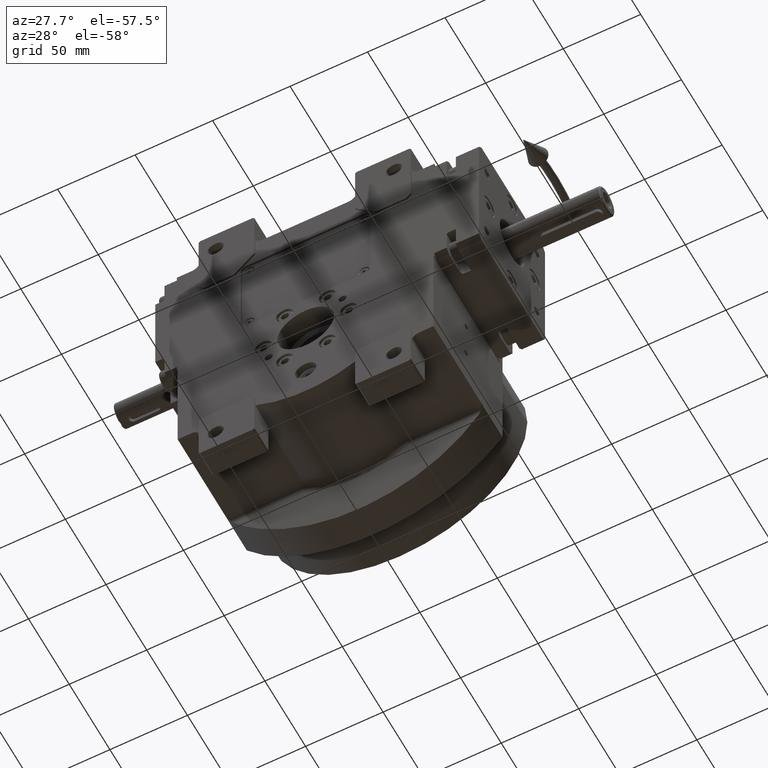
[diagram: clean part render]
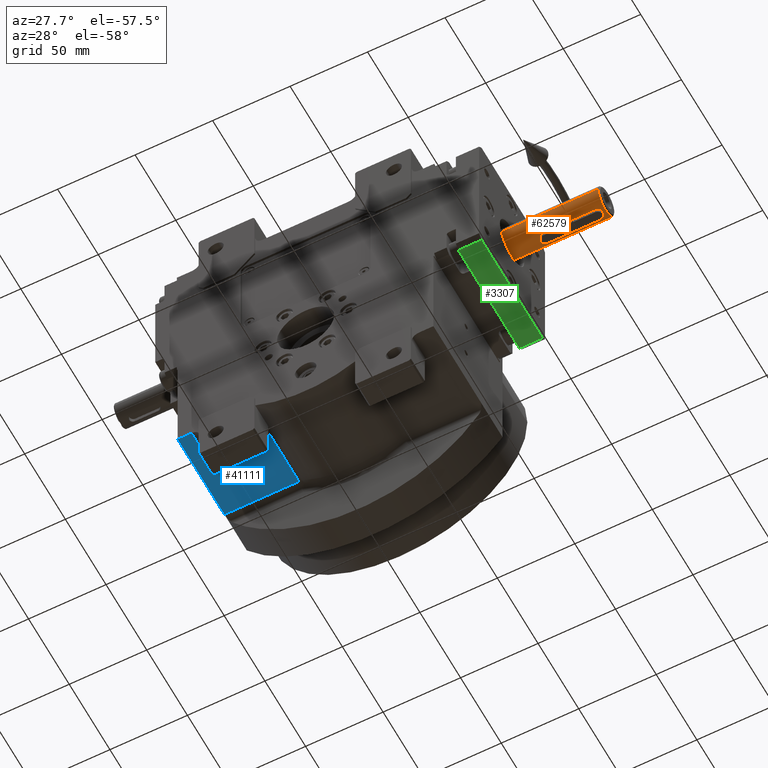
[diagram: same view with three faces highlighted in distinct colors, each labeled with its STEP entity id]
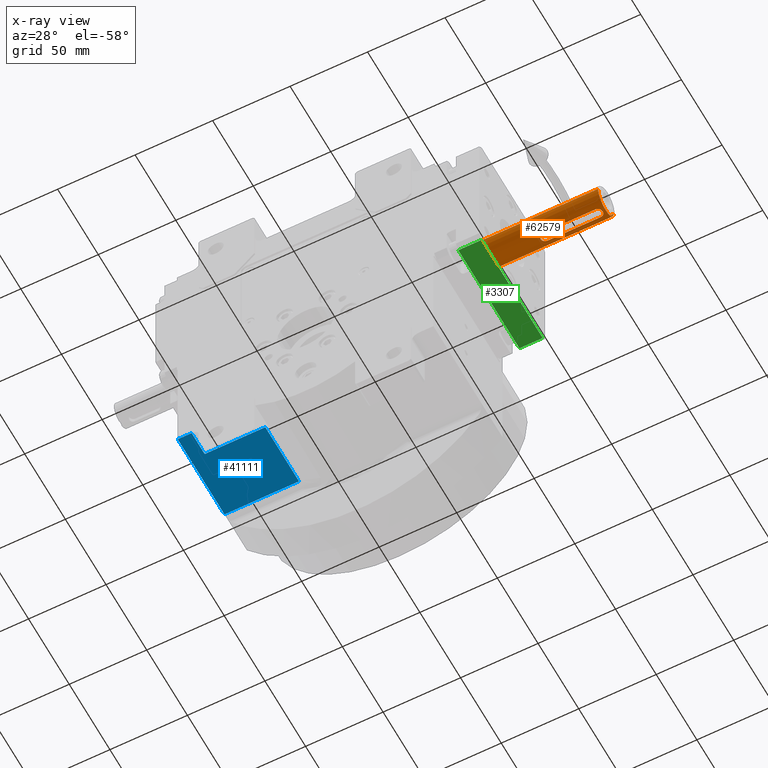
[diagram: x-ray of the same camera — body ghosted, the three highlighted faces saturated]
A machine part, auxiliary view with three faces highlighted in distinct colors.
The next image is the same camera in x-ray (body ghosted, the three faces saturated) — at least one of them is partly hidden behind the body in this view.
Their STEP definitions:

[orange] entity #62579 — the highlighted cylindrical surface (edge-blend (fillet) strip) has radius 9.5 mm, axis along (-1, -0, -0).
#222 = CARTESIAN_POINT ( 'NONE',  ( -2.076755534685462479, -98.33481572862692133, 9.270280632153106382 ) ) ;
#645 = CARTESIAN_POINT ( 'NONE',  ( -2.920503359152426537, -135.1930758617577624, 9.041319707718995957 ) ) ;
#1728 = CARTESIAN_POINT ( 'NONE',  ( -0.7705588840869115330, -137.4287509887514602, 9.476588555391328939 ) ) ;
#2597 = EDGE_LOOP ( 'NONE', ( #27983, #71092, #17566, #63409 ) ) ;
#2856 = CARTESIAN_POINT ( 'NONE',  ( 2.920503302003506274, -99.80692389705797041, 9.041319739571193281 ) ) ;
#2996 = CARTESIAN_POINT ( 'NONE',  ( -1.243527020587133824, -139.4998466943041819, 9.499846689728636662 ) ) ;
#3217 = CARTESIAN_POINT ( 'NONE',  ( 1.181140547334593727, -97.74227524908900477, 9.426234887611801838 ) ) ;
#3404 = CIRCLE ( 'NONE', #4568, 9.500000000000000000 ) ;
#3576 = CARTESIAN_POINT ( 'NONE',  ( 2.999999999999917843, -100.5000000000000000, 9.013878188659973034 ) ) ;
#3713 = CARTESIAN_POINT ( 'NONE',  ( 1.243527026386956669, -139.4998466943036703, 9.499846688969983077 ) ) ;
#3973 = VERTEX_POINT ( 'NONE', #33563 ) ;
#3982 = CARTESIAN_POINT ( 'NONE',  ( 2.999999999999900968, -134.5000000000000000, 9.013878188659973034 ) ) ;
#4314 = CARTESIAN_POINT ( 'NONE',  ( -0.6700262895659991891, -97.57411792000129935, 9.476593787887347631 ) ) ;
#4464 = CARTESIAN_POINT ( 'NONE',  ( 2.447916105662388375, -136.2452901866254251, 9.180967598890541481 ) ) ;
#4568 = AXIS2_PLACEMENT_3D ( 'NONE', #67119, #66421, #38582 ) ;
#4656 = EDGE_CURVE ( 'NONE', #22418, #36122, #58390, .T. ) ;
#4823 = CARTESIAN_POINT ( 'NONE',  ( 1.281189302773732663, -137.2162322305360931, 9.414028769672855290 ) ) ;
#5377 = CARTESIAN_POINT ( 'NONE',  ( -1.432446439617622191, -97.85683523955150065, 9.392028264645826852 ) ) ;
#5523 = CARTESIAN_POINT ( 'NONE',  ( 2.309830933422241994, -136.4328102777803053, 9.217002154046662454 ) ) ;
#5840 = DIRECTION ( 'NONE',  ( 4.683861624749757595E-31, -1.000000000000000000, -9.367723249499515189E-31 ) ) ;
#7014 = CARTESIAN_POINT ( 'NONE',  ( 2.927413515468598497E-29, -65.50000000000000000, 0.000000000000000000 ) ) ;
#8153 = EDGE_CURVE ( 'NONE', #11710, #15350, #46596, .T. ) ;
#8324 = CARTESIAN_POINT ( 'NONE',  ( 2.143571747433680397, -98.40093099558531264, 9.255083301667887952 ) ) ;
#8458 = CARTESIAN_POINT ( 'NONE',  ( -8.300836726140465416, -139.4998466943060862, 4.784303107579976455 ) ) ;
#8533 = VERTEX_POINT ( 'NONE', #12422 ) ;
#8679 = CARTESIAN_POINT ( 'NONE',  ( 1.943281345365760027, -98.20064117612012922, 9.300959556781824844 ) ) ;
#9047 = CARTESIAN_POINT ( 'NONE',  ( 2.294623447025719187, -98.56646007609728599, 9.219224885940105807 ) ) ;
#9406 = CARTESIAN_POINT ( 'NONE',  ( 2.999999999999923173, -100.2965243989202548, 9.015959503623328430 ) ) ;
#9775 = CARTESIAN_POINT ( 'NONE',  ( 1.168895048913221046, -97.73708418927932939, 9.427766392780942084 ) ) ;
#9913 = CARTESIAN_POINT ( 'NONE',  ( 4.784303105047607474, -139.4998466943028745, 8.300836727603803311 ) ) ;
#10146 = CARTESIAN_POINT ( 'NONE',  ( -3.000000000000075939, -100.0929497639062760, 9.018041906921343553 ) ) ;
#10299 = CARTESIAN_POINT ( 'NONE',  ( 2.759557787002767881, -135.6768409796904393, 9.090128969929150315 ) ) ;
#10646 = CARTESIAN_POINT ( 'NONE',  ( 0.9847578407999324490, -137.3345789351964470, 9.448970329299379856 ) ) ;
#10672 = DIRECTION ( 'NONE',  ( 4.683861624749757595E-31, -1.000000000000000000, -9.367723249499515189E-31 ) ) ;
#11206 = CARTESIAN_POINT ( 'NONE',  ( -2.767317610896457225, -99.34156612770402717, 9.087756597495436850 ) ) ;
#11266 = CARTESIAN_POINT ( 'NONE',  ( -2.654035305622171936, -135.9122420898385144, 9.123169023331190175 ) ) ;
#11710 = VERTEX_POINT ( 'NONE', #41867 ) ;
#11942 = EDGE_CURVE ( 'NONE', #14072, #36122, #27546, .T. ) ;
#12115 = CARTESIAN_POINT ( 'NONE',  ( 9.499961664422494678, -139.4999616814910155, -1.406597893716110548E-07 ) ) ;
#12339 = CARTESIAN_POINT ( 'NONE',  ( -1.160774523444123130, -137.2663372748490360, 9.428775172829066520 ) ) ;
#12422 = CARTESIAN_POINT ( 'NONE',  ( 9.499999999999934275, -65.50000000000000000, 0.000000000000000000 ) ) ;
#13415 = CARTESIAN_POINT ( 'NONE',  ( -2.332787495134699185, -136.3871788677842574, 9.209767946875800249 ) ) ;
#14072 = VERTEX_POINT ( 'NONE', #25578 ) ;
#14174 = CARTESIAN_POINT ( 'NONE',  ( 2.979241934065827824, -100.0963992266660227, 9.023080055721541370 ) ) ;
#14531 = CARTESIAN_POINT ( 'NONE',  ( 2.786101665362830992, -99.38739665115124922, 9.082041199737556525 ) ) ;
#14561 = ORIENTED_EDGE ( 'NONE', *, *, #19279, .T. ) ;
#15008 = CARTESIAN_POINT ( 'NONE',  ( -9.500000000000065725, -139.4999808407454225, 1.387778780781445676E-14 ) ) ;
#15271 = CARTESIAN_POINT ( 'NONE',  ( 2.853717011937232595, -99.57337026380001532, 9.061558713247453767 ) ) ;
#15350 = VERTEX_POINT ( 'NONE', #55683 ) ;
#15635 = CARTESIAN_POINT ( 'NONE',  ( -2.699222266585262542, -99.19011195750299237, 9.108662359077632331 ) ) ;
#15782 = CARTESIAN_POINT ( 'NONE',  ( 2.737669282503632839, -135.7269820504866118, 9.096856653874146659 ) ) ;
#16006 = CARTESIAN_POINT ( 'NONE',  ( -2.768052972860145733, -99.34331589979032628, 9.087531877680280701 ) ) ;
#16152 = CARTESIAN_POINT ( 'NONE',  ( 0.9122892548982852734, -137.3583703725897180, 9.456103506591537311 ) ) ;
#16488 = CARTESIAN_POINT ( 'NONE',  ( 0.3797347091585063783, -137.4823960554267614, 9.494147124271441029 ) ) ;
#16750 = CARTESIAN_POINT ( 'NONE',  ( -2.853717067103960670, -135.4266295672364038, 9.061558691766251172 ) ) ;
#17476 = CARTESIAN_POINT ( 'NONE',  ( -2.786101688588199288, -135.6126032908526895, 9.082041194698554420 ) ) ;
#17566 = ORIENTED_EDGE ( 'NONE', *, *, #11942, .T. ) ;
#17799 = VECTOR ( 'NONE', #31604, 1000.000000000000000 ) ;
#18724 = CARTESIAN_POINT ( 'NONE',  ( -3.000000000000082601, -100.5000000000000000, 9.013878188659973034 ) ) ;
#18920 = CARTESIAN_POINT ( 'NONE',  ( -2.439240535440532209, -136.2502776682960643, 9.182737694954422381 ) ) ;
#19019 = B_SPLINE_CURVE_WITH_KNOTS ( 'NONE', 3,
 ( #27805, #50864, #45343, #645, #50167, #16750, #67739, #39157, #17476, #39874, #62231, #32960, #61502, #11266, #51238, #18920, #13415, #52315, #41296, #56735, #23716, #40590, #47148, #30335, #46063, #40227, #51936, #63680, #35841, #46791, #69172, #24804, #12339, #58170, #1728, #24084, #68446 ),
 .UNSPECIFIED., .F., .F.,
 ( 4, 2, 2, 1, 1, 1, 2, 2, 2, 2, 2, 2, 2, 2, 2, 2, 1, 1, 2, 2, 4 ),
 ( 0.000000000000000000, 0.06249999999997334077, 0.09374999999996000422, 0.1093749999999533151, 0.1171874999999499706, 0.1210937499999483191, 0.1230468749999474726, 0.1249999999999466260, 0.1874999999999215072, 0.2187499999999125977, 0.2343749999999110711, 0.2421874999999077127, 0.2499999999999043543, 0.3124999999999106826, 0.3437499999999161782, 0.3593749999999190092, 0.3671874999999204525, 0.3710937499999235611, 0.3730468749999251710, 0.3749999999999267253, 0.5000000000000000000 ),
 .UNSPECIFIED. ) ;
#19279 = EDGE_CURVE ( 'NONE', #3973, #48022, #49565, .T. ) ;
#19823 = CARTESIAN_POINT ( 'NONE',  ( -9.252591106540734245, -139.4998466943066830, 2.486564777840073237 ) ) ;
#20020 = EDGE_CURVE ( 'NONE', #3973, #11710, #25666, .T. ) ;
#20545 = CARTESIAN_POINT ( 'NONE',  ( 0.1873683784700692356, -137.4999999999999147, 9.499999992726094078 ) ) ;
#20782 = CARTESIAN_POINT ( 'NONE',  ( 2.211729640948800757, -98.47286149866403093, 9.239144202690315666 ) ) ;
#21153 = CARTESIAN_POINT ( 'NONE',  ( -1.943068559403307249, -98.21351404368817839, 9.299014719597199274 ) ) ;
#21300 = CARTESIAN_POINT ( 'NONE',  ( 1.148703882575740298, -137.2713711948928221, 9.430257398825217408 ) ) ;
#21513 = CARTESIAN_POINT ( 'NONE',  ( -2.032155403112696046, -98.29290215498996020, 9.280087023850386529 ) ) ;
#21654 = CARTESIAN_POINT ( 'NONE',  ( 2.097753202479689438, -136.6448874191244727, 9.265577959733482416 ) ) ;
#22418 = VERTEX_POINT ( 'NONE', #12115 ) ;
#22566 = CARTESIAN_POINT ( 'NONE',  ( -1.110854957117733743, -97.71319310011547543, 9.434807596888386882 ) ) ;
#23234 = EDGE_CURVE ( 'NONE', #8533, #22418, #33016, .T. ) ;
#23716 = CARTESIAN_POINT ( 'NONE',  ( -2.167673431346316182, -136.5741818634464551, 9.249494854248775155 ) ) ;
#24084 = CARTESIAN_POINT ( 'NONE',  ( -0.3747367569403776688, -137.5000000000000000, 9.500000014546388982 ) ) ;
#24237 = VECTOR ( 'NONE', #5840, 1000.000000000000000 ) ;
#24804 = CARTESIAN_POINT ( 'NONE',  ( -1.168895081964845151, -137.2629157967361948, 9.427766390999158475 ) ) ;
#25203 = CARTESIAN_POINT ( 'NONE',  ( 2.439240572469500989, -98.74972238174069616, 9.182737684159796743 ) ) ;
#25578 = CARTESIAN_POINT ( 'NONE',  ( -9.500000000000065725, -65.50000000000000000, 5.273559366969493567E-13 ) ) ;
#25666 = B_SPLINE_CURVE_WITH_KNOTS ( 'NONE', 3,
 ( #3576, #9406, #14174, #2856, #58561, #15271, #70300, #48638, #14531, #25934, #37674, #30722, #36243, #36598, #64431, #25203, #69942, #9047, #31444, #20782, #58921, #8324, #8679, #53069, #71033, #43145, #36945, #31073, #48268, #53428, #3217, #9775, #60010, #47912, #70661, #59282, #54533, #31800, #4314, #26679, #64080, #49026, #41700, #22566, #44228, #33612, #44570, #65885, #5377, #66249, #27746, #61441, #21153, #71765, #21513, #222, #55598, #50114, #32904, #60383, #43868, #15635, #61819, #43504, #49740, #38052, #33246, #11206, #16006, #54911, #10146, #67299 ),
 .UNSPECIFIED., .F., .F.,
 ( 4, 2, 2, 1, 1, 1, 2, 2, 2, 2, 2, 2, 2, 2, 2, 2, 1, 1, 2, 2, 2, 2, 2, 1, 1, 1, 2, 2, 2, 2, 2, 2, 2, 2, 2, 2, 1, 1, 2, 2, 4 ),
 ( 0.000000000000000000, 0.06250000000009500734, 0.09375000000014034607, 0.1093750000001630363, 0.1171875000001744160, 0.1210937500001801337, 0.1230468750001829925, 0.1250000000001858513, 0.1875000000001509903, 0.2187500000001353917, 0.2343750000001262046, 0.2421875000001215972, 0.2500000000001169620, 0.3125000000000708877, 0.3437500000000467404, 0.3593750000000346390, 0.3671875000000274780, 0.3710937500000238698, 0.3730468750000232592, 0.3750000000000225930, 0.5000000000000260902, 0.5625000000000279776, 0.5937500000000288658, 0.6093750000000299760, 0.6171875000000305311, 0.6210937500000315303, 0.6230468750000327516, 0.6250000000000338618, 0.6875000000000427436, 0.7187500000000471845, 0.7343750000000494049, 0.7421875000000506262, 0.7500000000000518474, 0.8125000000000587308, 0.8437500000000640599, 0.8593750000000667244, 0.8671875000000652811, 0.8710937500000643929, 0.8730468750000640599, 0.8750000000000636158, 1.000000000000000000 ),
 .UNSPECIFIED. ) ;
#25934 = CARTESIAN_POINT ( 'NONE',  ( 2.779390155847576871, -99.37082958573847691, 9.084081746770817034 ) ) ;
#26074 = CARTESIAN_POINT ( 'NONE',  ( -7.596712402493168703, -139.4998466943058020, 5.838099626852363500 ) ) ;
#26679 = CARTESIAN_POINT ( 'NONE',  ( -0.7670911040149673843, -97.59796893654346661, 9.469277269051602275 ) ) ;
#27187 = CARTESIAN_POINT ( 'NONE',  ( 2.009855645629288645, -136.7274118719092826, 9.284892361262027549 ) ) ;
#27531 = CARTESIAN_POINT ( 'NONE',  ( 5.348145711521341872E-11, -137.4999999999946283, 9.499999999999761968 ) ) ;
#27546 = LINE ( 'NONE', #48811, #17799 ) ;
#27561 = AXIS2_PLACEMENT_3D ( 'NONE', #7014, #29403, #51738 ) ;
#27746 = CARTESIAN_POINT ( 'NONE',  ( -1.766836907354573993, -98.07290381776321908, 9.333934021171936379 ) ) ;
#27805 = CARTESIAN_POINT ( 'NONE',  ( -3.000000000000099032, -134.5000000000000000, 9.013878188659973034 ) ) ;
#27983 = ORIENTED_EDGE ( 'NONE', *, *, #23234, .F. ) ;
#29403 = DIRECTION ( 'NONE',  ( -4.683861624749757595E-31, 1.000000000000000000, 9.367723249499515189E-31 ) ) ;
#30335 = CARTESIAN_POINT ( 'NONE',  ( -1.763474083807786252, -136.9348268693561579, 9.335481082783305240 ) ) ;
#30722 = CARTESIAN_POINT ( 'NONE',  ( 2.771832886844528776, -99.35241223361512652, 9.086380949645821659 ) ) ;
#30855 = CARTESIAN_POINT ( 'NONE',  ( 9.499961664422494678, -139.4999616814910155, -1.406597893716110548E-07 ) ) ;
#31073 = CARTESIAN_POINT ( 'NONE',  ( 1.288025288732198126, -97.79030265976052760, 9.412060770623982719 ) ) ;
#31444 = CARTESIAN_POINT ( 'NONE',  ( 2.233000108996110900, -98.49633364467418062, 9.234080587709756927 ) ) ;
#31604 = DIRECTION ( 'NONE',  ( 4.683861624749757595E-31, -1.000000000000000000, -9.367723249499515189E-31 ) ) ;
#31800 = CARTESIAN_POINT ( 'NONE',  ( -0.3796884225539630120, -97.51759804841002222, 9.494152383383214655 ) ) ;
#31948 = CARTESIAN_POINT ( 'NONE',  ( 2.715497791960401752, -135.7756739207887904, 9.103672169444207540 ) ) ;
#32319 = CARTESIAN_POINT ( 'NONE',  ( 1.110860993346935333, -137.2868044789691453, 9.434806857722406903 ) ) ;
#32703 = CARTESIAN_POINT ( 'NONE',  ( 1.128810387914204183, -137.2795375218082086, 9.432663475260291364 ) ) ;
#32904 = CARTESIAN_POINT ( 'NONE',  ( -2.447916037937487577, -98.75470971929519237, 9.180967618583439460 ) ) ;
#32960 = CARTESIAN_POINT ( 'NONE',  ( -2.771832899712923570, -135.6475877353118449, 9.086380948673349778 ) ) ;
#33016 = LINE ( 'NONE', #64984, #24237 ) ;
#33048 = CARTESIAN_POINT ( 'NONE',  ( 2.916388821839672740, -135.2997150700380757, 9.042361559259964210 ) ) ;
#33246 = CARTESIAN_POINT ( 'NONE',  ( -2.764238496094473252, -99.33423787470611899, 9.088697175774271386 ) ) ;
#33390 = CARTESIAN_POINT ( 'NONE',  ( 2.032155351791240960, -136.7070978921703102, 9.280087036059251560 ) ) ;
#33563 = CARTESIAN_POINT ( 'NONE',  ( 2.999999999999917843, -100.5000000000000000, 9.013878188659973034 ) ) ;
#33612 = CARTESIAN_POINT ( 'NONE',  ( -1.140768032649949859, -97.72534866427945133, 9.431223335599110413 ) ) ;
#34904 = CYLINDRICAL_SURFACE ( 'NONE', #27561, 9.500000000000000000 ) ;
#35071 = CARTESIAN_POINT ( 'NONE',  ( 5.348145711521341872E-11, -137.4999999999946283, 9.499999999999761968 ) ) ;
#35841 = CARTESIAN_POINT ( 'NONE',  ( -1.235793688551417802, -137.2337119753647698, 9.419140061578065826 ) ) ;
#36122 = VERTEX_POINT ( 'NONE', #15008 ) ;
#36243 = CARTESIAN_POINT ( 'NONE',  ( 2.722407556804322226, -99.23347054365325448, 9.101428105267638458 ) ) ;
#36367 = CARTESIAN_POINT ( 'NONE',  ( 7.596712406060411205, -139.4998466943020503, 5.838099622216796902 ) ) ;
#36598 = CARTESIAN_POINT ( 'NONE',  ( 2.654035345345563179, -99.08775798405100943, 9.123169007479537740 ) ) ;
#36945 = CARTESIAN_POINT ( 'NONE',  ( 1.324139233458395237, -97.80771359803623000, 9.406950157631133180 ) ) ;
#37088 = CARTESIAN_POINT ( 'NONE',  ( -9.499846688587128440, -139.4998466943069673, 1.243527029286559227 ) ) ;
#37674 = CARTESIAN_POINT ( 'NONE',  ( 2.774885410507772043, -99.35980421794454287, 9.085451953719688944 ) ) ;
#38052 = CARTESIAN_POINT ( 'NONE',  ( -2.759557796081211656, -99.32315904151028008, 9.090128972670342478 ) ) ;
#38309 = VERTEX_POINT ( 'NONE', #35071 ) ;
#38315 = B_SPLINE_CURVE_WITH_KNOTS ( 'NONE', 3,
 ( #27531, #20545, #16488, #38900, #65304, #16152, #10646, #60155, #32319, #32703, #44370, #21300, #4823, #72265, #71195, #49888, #61242, #49177, #27187, #33390, #59792, #21654, #5523, #4464, #66027, #54684, #43296, #31948, #15782, #48410, #10299, #70808, #66395, #42930, #33048, #65664, #55403 ),
 .UNSPECIFIED., .F., .F.,
 ( 4, 2, 2, 1, 1, 1, 2, 2, 2, 2, 2, 2, 2, 2, 2, 2, 1, 1, 2, 2, 4 ),
 ( 0.5000000000000000000, 0.5624999999999529265, 0.5937499999999292788, 0.6093749999999175104, 0.6171874999999129585, 0.6210937499999107381, 0.6230468749999096278, 0.6249999999999085176, 0.6874999999998867573, 0.7187499999998735456, 0.7343749999998692157, 0.7421874999998671063, 0.7499999999998649969, 0.8124999999998300249, 0.8437499999998124833, 0.8593749999998037126, 0.8671874999997993827, 0.8710937499998030464, 0.8730468749998048228, 0.8749999999998067102, 1.000000000000000000 ),
 .UNSPECIFIED. ) ;
#38582 = DIRECTION ( 'NONE',  ( 1.000000000000000000, 0.000000000000000000, -8.437694987151189707E-15 ) ) ;
#38900 = CARTESIAN_POINT ( 'NONE',  ( 0.6700716314788145445, -137.4258716955598914, 9.476588529817618678 ) ) ;
#39157 = CARTESIAN_POINT ( 'NONE',  ( -2.801440679763872676, -135.5737452883029448, 9.077383257877743361 ) ) ;
#39874 = CARTESIAN_POINT ( 'NONE',  ( -2.779390174406766167, -135.6291703686030417, 9.084081743598442671 ) ) ;
#40227 = CARTESIAN_POINT ( 'NONE',  ( -1.435996223192500754, -137.1353212261336125, 9.390445063870702214 ) ) ;
#40590 = CARTESIAN_POINT ( 'NONE',  ( -2.143571795969489102, -136.5990689549265653, 9.255083290078999880 ) ) ;
#41296 = CARTESIAN_POINT ( 'NONE',  ( -2.233000117979122123, -136.5036663451818697, 9.234080585405582298 ) ) ;
#41700 = CARTESIAN_POINT ( 'NONE',  ( -1.068898133186884314, -97.69667766413827792, 9.439689488641199944 ) ) ;
#41842 = CARTESIAN_POINT ( 'NONE',  ( 2.486564775016372408, -139.4998466943034430, 9.252591107302963636 ) ) ;
#41867 = CARTESIAN_POINT ( 'NONE',  ( -3.000000000000082601, -100.5000000000000000, 9.013878188659973034 ) ) ;
#42506 = VECTOR ( 'NONE', #10672, 1000.000000000000000 ) ;
#42930 = CARTESIAN_POINT ( 'NONE',  ( 2.768052956639070583, -135.6566841389912668, 9.087531877756950038 ) ) ;
#43145 = CARTESIAN_POINT ( 'NONE',  ( 1.435996225511757096, -97.86467877490284195, 9.390445062414320532 ) ) ;
#43296 = CARTESIAN_POINT ( 'NONE',  ( 2.699222297941167081, -135.8098879774420311, 9.108662342665146738 ) ) ;
#43504 = CARTESIAN_POINT ( 'NONE',  ( -2.737669274489143323, -99.27301793146652642, 9.096856662832257356 ) ) ;
#43868 = CARTESIAN_POINT ( 'NONE',  ( -2.645266902534336939, -99.08261045312863757, 9.124972373101158496 ) ) ;
#43887 = ORIENTED_EDGE ( 'NONE', *, *, #20020, .F. ) ;
#43967 = EDGE_CURVE ( 'NONE', #8533, #14072, #3404, .T. ) ;
#44228 = CARTESIAN_POINT ( 'NONE',  ( -1.128806930398036812, -97.72046107186513098, 9.432663900991398620 ) ) ;
#44370 = CARTESIAN_POINT ( 'NONE',  ( 1.140769747583928240, -137.2746506284574650, 9.431223122249384971 ) ) ;
#44570 = CARTESIAN_POINT ( 'NONE',  ( -1.148703946713940827, -97.72862883169422332, 9.430257394497802537 ) ) ;
#45098 = CARTESIAN_POINT ( 'NONE',  ( 2.999999999999917843, -100.5000000000000000, 9.013878188659973034 ) ) ;
#45343 = CARTESIAN_POINT ( 'NONE',  ( -2.979241966011219489, -134.9036005349896641, 9.023080024022270607 ) ) ;
#46063 = CARTESIAN_POINT ( 'NONE',  ( -1.515281974658803321, -137.0910376722993647, 9.377877325281463783 ) ) ;
#46596 = LINE ( 'NONE', #18724, #48958 ) ;
#46791 = CARTESIAN_POINT ( 'NONE',  ( -1.210162166939586115, -137.2451936691271897, 9.422533049781094405 ) ) ;
#47148 = CARTESIAN_POINT ( 'NONE',  ( -1.943281365728480203, -136.7993588111387737, 9.300959552143941877 ) ) ;
#47912 = CARTESIAN_POINT ( 'NONE',  ( 1.158689120431839026, -97.73278455093795003, 9.429034126038732921 ) ) ;
#48022 = VERTEX_POINT ( 'NONE', #3982 ) ;
#48268 = CARTESIAN_POINT ( 'NONE',  ( 1.235793668741991036, -97.76628801565973959, 9.419140061994129454 ) ) ;
#48410 = CARTESIAN_POINT ( 'NONE',  ( 2.748194190245317081, -135.7032927194788101, 9.093616332154452309 ) ) ;
#48638 = CARTESIAN_POINT ( 'NONE',  ( 2.801440646741421236, -99.42625462617388621, 9.077383267056914562 ) ) ;
#48811 = CARTESIAN_POINT ( 'NONE',  ( -9.500000000000065725, -65.50000000000000000, 5.273559366969493567E-13 ) ) ;
#48958 = VECTOR ( 'NONE', #65298, 1000.000000000000000 ) ;
#49026 = CARTESIAN_POINT ( 'NONE',  ( -0.9847355283867276210, -97.66541312523159490, 9.448973010786199112 ) ) ;
#49177 = CARTESIAN_POINT ( 'NONE',  ( 1.943068524284928156, -136.7864859858514990, 9.299014728045641220 ) ) ;
#49565 = LINE ( 'NONE', #45098, #42506 ) ;
#49740 = CARTESIAN_POINT ( 'NONE',  ( -2.748194189871639104, -99.29670727933954311, 9.093616338439288072 ) ) ;
#49888 = CARTESIAN_POINT ( 'NONE',  ( 1.766836897842546827, -136.9270961884042492, 9.333934023771325528 ) ) ;
#50114 = CARTESIAN_POINT ( 'NONE',  ( -2.309830897740321465, -98.56718969883681325, 9.217002160808576150 ) ) ;
#50167 = CARTESIAN_POINT ( 'NONE',  ( -2.896334213184976747, -135.2877956215677671, 9.048659414192901096 ) ) ;
#50864 = CARTESIAN_POINT ( 'NONE',  ( -3.000000000000075495, -134.7034754428541987, 9.015959482524445789 ) ) ;
#51238 = CARTESIAN_POINT ( 'NONE',  ( -2.499491400642898764, -136.1619643555331436, 9.166504955602142957 ) ) ;
#51738 = DIRECTION ( 'NONE',  ( 1.000000000000000000, 0.000000000000000000, -8.437694987151189707E-15 ) ) ;
#51936 = CARTESIAN_POINT ( 'NONE',  ( -1.324139240797756134, -137.1922863982985348, 9.406950158389344452 ) ) ;
#52301 = EDGE_CURVE ( 'NONE', #38309, #48022, #38315, .T. ) ;
#52315 = CARTESIAN_POINT ( 'NONE',  ( -2.294623438943612648, -136.4335399329433187, 9.219224887998418438 ) ) ;
#52842 = CARTESIAN_POINT ( 'NONE',  ( 9.499846689352267504, -139.4998466943009419, 1.243527023487553063 ) ) ;
#53069 = CARTESIAN_POINT ( 'NONE',  ( 1.763474082873049076, -98.06517313029257821, 9.335481083612371833 ) ) ;
#53205 = CARTESIAN_POINT ( 'NONE',  ( 5.838099624535307619, -139.4998466943025619, 7.596712404277949027 ) ) ;
#53428 = CARTESIAN_POINT ( 'NONE',  ( 1.210162142626706627, -97.75480632011371540, 9.422533050649411379 ) ) ;
#53921 = CARTESIAN_POINT ( 'NONE',  ( -4.784303099978775897, -139.4998466943049777, 8.300836730522794582 ) ) ;
#54533 = CARTESIAN_POINT ( 'NONE',  ( -0.1873372525511108888, -97.49999998684707236, 9.500003499031958398 ) ) ;
#54684 = CARTESIAN_POINT ( 'NONE',  ( 2.645266956385125656, -135.9173894447391717, 9.124972350850661940 ) ) ;
#54911 = CARTESIAN_POINT ( 'NONE',  ( -2.916389009766934937, -99.70028539845928606, 9.042361493599500477 ) ) ;
#55403 = CARTESIAN_POINT ( 'NONE',  ( 2.999999999999900968, -134.5000000000000000, 9.013878188659973034 ) ) ;
#55598 = CARTESIAN_POINT ( 'NONE',  ( -2.097753284790786488, -98.35511266164887445, 9.265577940295855797 ) ) ;
#55683 = CARTESIAN_POINT ( 'NONE',  ( -3.000000000000099032, -134.5000000000000000, 9.013878188659973034 ) ) ;
#56735 = CARTESIAN_POINT ( 'NONE',  ( -2.211729656253432985, -136.5271384844810427, 9.239144198828508792 ) ) ;
#57375 = EDGE_LOOP ( 'NONE', ( #14561, #67022, #61684, #60021, #43887 ) ) ;
#58170 = CARTESIAN_POINT ( 'NONE',  ( -1.158690052085281197, -137.2672150612251301, 9.429034014197243962 ) ) ;
#58390 = B_SPLINE_CURVE_WITH_KNOTS ( 'NONE', 3,
 ( #30855, #52842, #60145, #64557, #36367, #53205, #9913, #41842, #3713, #2996, #64214, #53921, #59431, #26074, #8458, #19823, #37088, #58690 ),
 .UNSPECIFIED., .F., .F.,
 ( 4, 2, 2, 2, 2, 2, 2, 2, 4 ),
 ( 0.000000000000000000, 0.1250000000000000833, 0.2500000000000001665, 0.3750000000000001665, 0.5000000000000002220, 0.6250000000000002220, 0.7500000000000001110, 0.8750000000000001110, 1.000000000000000000 ),
 .UNSPECIFIED. ) ;
#58561 = CARTESIAN_POINT ( 'NONE',  ( 2.896334151371440235, -99.71220415555752936, 9.048659443471464670 ) ) ;
#58690 = CARTESIAN_POINT ( 'NONE',  ( -9.500000000000065725, -139.4999808407454225, 1.387778780781445676E-14 ) ) ;
#58921 = CARTESIAN_POINT ( 'NONE',  ( 2.167673402036187635, -98.42581810576915302, 9.249494861432760118 ) ) ;
#59282 = CARTESIAN_POINT ( 'NONE',  ( 0.3746751369924418706, -97.50000002630594054, 9.499993001932642400 ) ) ;
#59431 = CARTESIAN_POINT ( 'NONE',  ( -5.838099619895764647, -139.4998466943052620, 7.596712407840009007 ) ) ;
#59792 = CARTESIAN_POINT ( 'NONE',  ( 2.076755474643335209, -136.6651843288679515, 9.270280646437230487 ) ) ;
#60010 = CARTESIAN_POINT ( 'NONE',  ( 1.160774488533430793, -97.73366271050075227, 9.428775174807883630 ) ) ;
#60021 = ORIENTED_EDGE ( 'NONE', *, *, #8153, .F. ) ;
#60145 = CARTESIAN_POINT ( 'NONE',  ( 9.252591108064056158, -139.4998466943011977, 2.486564772192656037 ) ) ;
#60155 = CARTESIAN_POINT ( 'NONE',  ( 1.068909936755656709, -137.3033177801153215, 9.439688054087657321 ) ) ;
#60383 = CARTESIAN_POINT ( 'NONE',  ( -2.602468575477382196, -99.00442650236387010, 9.137631697891062998 ) ) ;
#61242 = CARTESIAN_POINT ( 'NONE',  ( 1.898695308353822941, -136.8233775540947192, 9.308038160801771710 ) ) ;
#61441 = CARTESIAN_POINT ( 'NONE',  ( -1.898695336270241452, -98.17662246852120234, 9.308038153982771234 ) ) ;
#61502 = CARTESIAN_POINT ( 'NONE',  ( -2.722407539866268156, -135.7665295004914867, 9.101428116198414742 ) ) ;
#61684 = ORIENTED_EDGE ( 'NONE', *, *, #70616, .F. ) ;
#61819 = CARTESIAN_POINT ( 'NONE',  ( -2.715497769375539328, -99.22432603050229716, 9.103672183263343598 ) ) ;
#62231 = CARTESIAN_POINT ( 'NONE',  ( -2.774885425850079024, -135.6401957447407938, 9.085451951812240523 ) ) ;
#62579 = ADVANCED_FACE ( 'NONE', ( #68238, #62749 ), #34904, .T. ) ;
#62749 = FACE_BOUND ( 'NONE', #57375, .T. ) ;
#63409 = ORIENTED_EDGE ( 'NONE', *, *, #4656, .F. ) ;
#63680 = CARTESIAN_POINT ( 'NONE',  ( -1.288025300381495208, -137.2096973346190225, 9.412060771001355519 ) ) ;
#64080 = CARTESIAN_POINT ( 'NONE',  ( -0.9122597830392107365, -97.64162015259859118, 9.456107010292281956 ) ) ;
#64214 = CARTESIAN_POINT ( 'NONE',  ( -2.486564769367286321, -139.4998466943044946, 9.252591108819977705 ) ) ;
#64431 = CARTESIAN_POINT ( 'NONE',  ( 2.499491442532494556, -98.83803570730432853, 9.166504942301695991 ) ) ;
#64557 = CARTESIAN_POINT ( 'NONE',  ( 8.300836729065119712, -139.4998466943017377, 4.784303102514393835 ) ) ;
#64984 = CARTESIAN_POINT ( 'NONE',  ( 9.499999999999934275, -65.50000000000000000, 0.000000000000000000 ) ) ;
#65298 = DIRECTION ( 'NONE',  ( 4.683861624749757595E-31, -1.000000000000000000, -9.367723249499515189E-31 ) ) ;
#65304 = CARTESIAN_POINT ( 'NONE',  ( 0.7671322348754920917, -137.4020199207140536, 9.469272449704369876 ) ) ;
#65664 = CARTESIAN_POINT ( 'NONE',  ( 2.999999999999922728, -134.9070507244534269, 9.018041972219933200 ) ) ;
#65885 = CARTESIAN_POINT ( 'NONE',  ( -1.281189317409864525, -97.78376777896396277, 9.414028770577422378 ) ) ;
#66027 = CARTESIAN_POINT ( 'NONE',  ( 2.602468639309346354, -135.9955733868266350, 9.137631674337931997 ) ) ;
#66249 = CARTESIAN_POINT ( 'NONE',  ( -1.680644822948894168, -98.01303625530894692, 9.349632018007966394 ) ) ;
#66395 = CARTESIAN_POINT ( 'NONE',  ( 2.767317594863722530, -135.6584339105825734, 9.087756597457357088 ) ) ;
#66421 = DIRECTION ( 'NONE',  ( 4.683861624749757595E-31, -1.000000000000000000, -9.367723249499515189E-31 ) ) ;
#67022 = ORIENTED_EDGE ( 'NONE', *, *, #52301, .F. ) ;
#67119 = CARTESIAN_POINT ( 'NONE',  ( 2.927413515468598497E-29, -65.50000000000000000, 0.000000000000000000 ) ) ;
#67299 = CARTESIAN_POINT ( 'NONE',  ( -3.000000000000082601, -100.5000000000000000, 9.013878188659973034 ) ) ;
#67739 = CARTESIAN_POINT ( 'NONE',  ( -2.830818324944660791, -135.4952364210569442, 9.068480760018553966 ) ) ;
#68238 = FACE_OUTER_BOUND ( 'NONE', #2597, .T. ) ;
#68446 = CARTESIAN_POINT ( 'NONE',  ( 5.348145711521341872E-11, -137.4999999999946283, 9.499999999999761968 ) ) ;
#69172 = CARTESIAN_POINT ( 'NONE',  ( -1.181140577651560220, -137.2577247379154528, 9.426234886118637135 ) ) ;
#69942 = CARTESIAN_POINT ( 'NONE',  ( 2.332787512060606083, -98.61282115277484195, 9.209767942323020762 ) ) ;
#70300 = CARTESIAN_POINT ( 'NONE',  ( 2.830818276501263497, -99.50476344352320268, 9.068480776616844707 ) ) ;
#70616 = EDGE_CURVE ( 'NONE', #15350, #38309, #19019, .T. ) ;
#70661 = CARTESIAN_POINT ( 'NONE',  ( 0.7706161163638139966, -97.57127283665346340, 9.476581539417944455 ) ) ;
#70808 = CARTESIAN_POINT ( 'NONE',  ( 2.764238482857352075, -135.6657621566685634, 9.088697174642812016 ) ) ;
#71033 = CARTESIAN_POINT ( 'NONE',  ( 1.515281979031432691, -97.90896233033446094, 9.377877323952098720 ) ) ;
#71092 = ORIENTED_EDGE ( 'NONE', *, *, #43967, .T. ) ;
#71195 = CARTESIAN_POINT ( 'NONE',  ( 1.680644821390849364, -136.9869637456455678, 9.349632018685921864 ) ) ;
#71765 = CARTESIAN_POINT ( 'NONE',  ( -2.009855692750635026, -98.27258817053152029, 9.284892350035061526 ) ) ;
#72265 = CARTESIAN_POINT ( 'NONE',  ( 1.432446444446085820, -137.1431647574616477, 9.392028262234354941 ) ) ;

[blue] entity #41111 — the highlighted planar face has unit normal (0, 0, 1).
#695 = VECTOR ( 'NONE', #25341, 1000.000000000000000 ) ;
#3435 = ORIENTED_EDGE ( 'NONE', *, *, #15142, .T. ) ;
#4925 = ORIENTED_EDGE ( 'NONE', *, *, #33801, .F. ) ;
#5592 = EDGE_CURVE ( 'NONE', #15270, #37665, #60242, .T. ) ;
#6979 = VERTEX_POINT ( 'NONE', #11247 ) ;
#7888 = VECTOR ( 'NONE', #65392, 1000.000000000000000 ) ;
#8100 = VERTEX_POINT ( 'NONE', #24974 ) ;
#11247 = CARTESIAN_POINT ( 'NONE',  ( -82.50000025288930772, 16.91834889469715009, -58.26448317800269905 ) ) ;
#11264 = FACE_OUTER_BOUND ( 'NONE', #31357, .T. ) ;
#12394 = DIRECTION ( 'NONE',  ( -1.000000000000000000, 0.000000000000000000, 0.000000000000000000 ) ) ;
#12556 = ORIENTED_EDGE ( 'NONE', *, *, #17428, .F. ) ;
#13281 = CARTESIAN_POINT ( 'NONE',  ( -34.37448426114834632, -24.50000000000000000, -58.26448317800490173 ) ) ;
#14257 = CARTESIAN_POINT ( 'NONE',  ( -82.50000000000000000, -40.50000000000000000, -58.26448317800490173 ) ) ;
#15142 = EDGE_CURVE ( 'NONE', #8100, #6979, #58641, .T. ) ;
#15270 = VERTEX_POINT ( 'NONE', #20879 ) ;
#15841 = CARTESIAN_POINT ( 'NONE',  ( -34.37448426114839606, 16.91834412991290293, -58.26448317800490173 ) ) ;
#16165 = LINE ( 'NONE', #38209, #39083 ) ;
#17428 = EDGE_CURVE ( 'NONE', #8100, #15270, #18508, .T. ) ;
#17956 = VERTEX_POINT ( 'NONE', #13281 ) ;
#18490 = ORIENTED_EDGE ( 'NONE', *, *, #5592, .F. ) ;
#18508 = LINE ( 'NONE', #29904, #35255 ) ;
#18614 = CARTESIAN_POINT ( 'NONE',  ( -34.37448426114834632, -24.50000000000000000, -58.26448317800490173 ) ) ;
#19133 = ORIENTED_EDGE ( 'NONE', *, *, #54690, .F. ) ;
#19335 = LINE ( 'NONE', #18614, #32504 ) ;
#19734 = AXIS2_PLACEMENT_3D ( 'NONE', #66997, #61877, #62230 ) ;
#20879 = CARTESIAN_POINT ( 'NONE',  ( -73.50000000000000000, -40.50000000000000000, -58.26448317800490173 ) ) ;
#21029 = CARTESIAN_POINT ( 'NONE',  ( -73.50000000000000000, -40.50000000000000000, -58.26448317800490173 ) ) ;
#23476 = VECTOR ( 'NONE', #30440, 1000.000000000000000 ) ;
#24596 = LINE ( 'NONE', #25706, #695 ) ;
#24974 = CARTESIAN_POINT ( 'NONE',  ( -82.50000000000000000, -40.50000000000000000, -58.26448317800490173 ) ) ;
#25341 = DIRECTION ( 'NONE',  ( -1.715526660195324723E-16, 1.000000000000000000, 0.000000000000000000 ) ) ;
#25706 = CARTESIAN_POINT ( 'NONE',  ( -34.37448426114834632, -24.50000000000000000, -58.26448317800490173 ) ) ;
#26514 = CARTESIAN_POINT ( 'NONE',  ( -73.50000000000000000, -24.50000000000000000, -58.26448317800490173 ) ) ;
#29904 = CARTESIAN_POINT ( 'NONE',  ( -82.50000000000000000, -40.50000000000000000, -58.26448317800490173 ) ) ;
#29927 = EDGE_CURVE ( 'NONE', #17956, #37665, #19335, .T. ) ;
#30440 = DIRECTION ( 'NONE',  ( 0.000000000000000000, 1.000000000000000000, 0.000000000000000000 ) ) ;
#31357 = EDGE_LOOP ( 'NONE', ( #19133, #52655, #18490, #12556, #3435, #4925 ) ) ;
#32504 = VECTOR ( 'NONE', #12394, 1000.000000000000000 ) ;
#33801 = EDGE_CURVE ( 'NONE', #49207, #6979, #16165, .T. ) ;
#35255 = VECTOR ( 'NONE', #39826, 1000.000000000000000 ) ;
#37665 = VERTEX_POINT ( 'NONE', #26514 ) ;
#38209 = CARTESIAN_POINT ( 'NONE',  ( -34.37448426114839606, 16.91834412991290293, -58.26448317800490173 ) ) ;
#39083 = VECTOR ( 'NONE', #54319, 1000.000000000000000 ) ;
#39826 = DIRECTION ( 'NONE',  ( 1.000000000000000000, 0.000000000000000000, 0.000000000000000000 ) ) ;
#39873 = PLANE ( 'NONE',  #19734 ) ;
#41111 = ADVANCED_FACE ( 'NONE', ( #11264 ), #39873, .F. ) ;
#49207 = VERTEX_POINT ( 'NONE', #15841 ) ;
#52655 = ORIENTED_EDGE ( 'NONE', *, *, #29927, .T. ) ;
#54319 = DIRECTION ( 'NONE',  ( -1.000000000000000000, 0.000000000000000000, 0.000000000000000000 ) ) ;
#54690 = EDGE_CURVE ( 'NONE', #17956, #49207, #24596, .T. ) ;
#58641 = LINE ( 'NONE', #14257, #23476 ) ;
#60242 = LINE ( 'NONE', #21029, #7888 ) ;
#61877 = DIRECTION ( 'NONE',  ( 0.000000000000000000, 0.000000000000000000, 1.000000000000000000 ) ) ;
#62230 = DIRECTION ( 'NONE',  ( -1.000000000000000000, 0.000000000000000000, 0.000000000000000000 ) ) ;
#65392 = DIRECTION ( 'NONE',  ( 0.000000000000000000, 1.000000000000000000, 0.000000000000000000 ) ) ;
#66997 = CARTESIAN_POINT ( 'NONE',  ( -33.07944981404600071, -40.50000000000000000, -58.26448317800490173 ) ) ;

[green] entity #3307 — the highlighted planar face has unit normal (-0, -0, -1).
#2394 = VECTOR ( 'NONE', #54598, 1000.000000000000000 ) ;
#3274 = LINE ( 'NONE', #19748, #2394 ) ;
#3307 = ADVANCED_FACE ( 'NONE', ( #16046 ), #49427, .T. ) ;
#3981 = CARTESIAN_POINT ( 'NONE',  ( 40.50000000000059686, 0.000000000000000000, -49.00000000000105871 ) ) ;
#5376 = EDGE_CURVE ( 'NONE', #61430, #14228, #30591, .T. ) ;
#8195 = DIRECTION ( 'NONE',  ( -1.000000000000000000, -1.406162010298008269E-30, 9.547918011776466155E-15 ) ) ;
#10686 = EDGE_CURVE ( 'NONE', #14228, #54365, #37468, .T. ) ;
#13324 = CARTESIAN_POINT ( 'NONE',  ( 37.50000000000059686, 0.000000000000000000, -49.00000000000105871 ) ) ;
#14228 = VERTEX_POINT ( 'NONE', #53674 ) ;
#15530 = AXIS2_PLACEMENT_3D ( 'NONE', #3981, #65553, #37711 ) ;
#15750 = CARTESIAN_POINT ( 'NONE',  ( 37.50000000000059686, -15.00000000000000000, -49.00000000000105871 ) ) ;
#16046 = FACE_OUTER_BOUND ( 'NONE', #58853, .T. ) ;
#19748 = CARTESIAN_POINT ( 'NONE',  ( 37.50000000000059686, -15.00000000000000000, -49.00000000000105871 ) ) ;
#23281 = ORIENTED_EDGE ( 'NONE', *, *, #55489, .T. ) ;
#30591 = LINE ( 'NONE', #13324, #35979 ) ;
#34193 = ORIENTED_EDGE ( 'NONE', *, *, #70390, .T. ) ;
#35979 = VECTOR ( 'NONE', #8195, 1000.000000000000000 ) ;
#37182 = CARTESIAN_POINT ( 'NONE',  ( 37.50000000000059686, 0.000000000000000000, -49.00000000000105871 ) ) ;
#37468 = LINE ( 'NONE', #59802, #51234 ) ;
#37711 = DIRECTION ( 'NONE',  ( -1.000000000000000000, -1.406162010298008269E-30, 9.547918011776466155E-15 ) ) ;
#38186 = CARTESIAN_POINT ( 'NONE',  ( 37.50000000000059686, 0.000000000000000000, -49.00000000000105871 ) ) ;
#49427 = PLANE ( 'NONE',  #15530 ) ;
#51234 = VECTOR ( 'NONE', #53588, 1000.000000000000000 ) ;
#52715 = VERTEX_POINT ( 'NONE', #15750 ) ;
#53588 = DIRECTION ( 'NONE',  ( -1.399999034475975771E-30, -1.000000000000000000, 0.000000000000000000 ) ) ;
#53674 = CARTESIAN_POINT ( 'NONE',  ( -37.49999999999940314, 0.000000000000000000, -49.00000000000052580 ) ) ;
#54365 = VERTEX_POINT ( 'NONE', #61676 ) ;
#54598 = DIRECTION ( 'NONE',  ( -1.000000000000000000, -1.406162010298008269E-30, 9.547918011776466155E-15 ) ) ;
#54752 = VECTOR ( 'NONE', #69811, 1000.000000000000000 ) ;
#55489 = EDGE_CURVE ( 'NONE', #61430, #52715, #64652, .T. ) ;
#58853 = EDGE_LOOP ( 'NONE', ( #34193, #59908, #67938, #23281 ) ) ;
#59802 = CARTESIAN_POINT ( 'NONE',  ( -37.49999999999940314, 0.000000000000000000, -49.00000000000052580 ) ) ;
#59908 = ORIENTED_EDGE ( 'NONE', *, *, #10686, .F. ) ;
#61430 = VERTEX_POINT ( 'NONE', #38186 ) ;
#61676 = CARTESIAN_POINT ( 'NONE',  ( -37.49999999999940314, -15.00000000000000000, -49.00000000000052580 ) ) ;
#64652 = LINE ( 'NONE', #37182, #54752 ) ;
#65553 = DIRECTION ( 'NONE',  ( -9.547918011776466155E-15, -4.930380657633924944E-32, -1.000000000000000000 ) ) ;
#67938 = ORIENTED_EDGE ( 'NONE', *, *, #5376, .F. ) ;
#69811 = DIRECTION ( 'NONE',  ( -1.399999034475975771E-30, -1.000000000000000000, 0.000000000000000000 ) ) ;
#70390 = EDGE_CURVE ( 'NONE', #52715, #54365, #3274, .T. ) ;